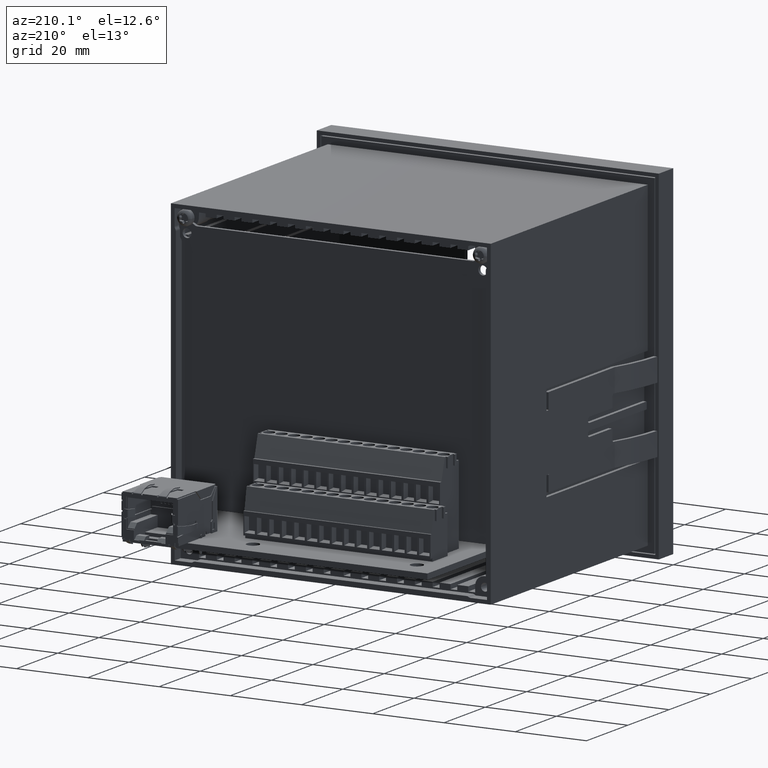
[diagram: clean part render]
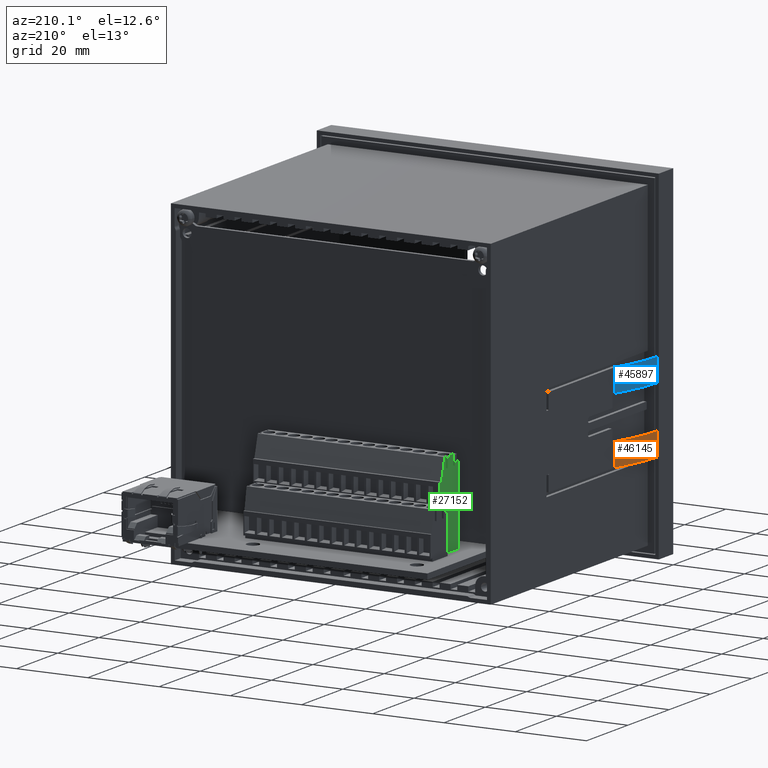
[diagram: same view with three faces highlighted in distinct colors, each labeled with its STEP entity id]
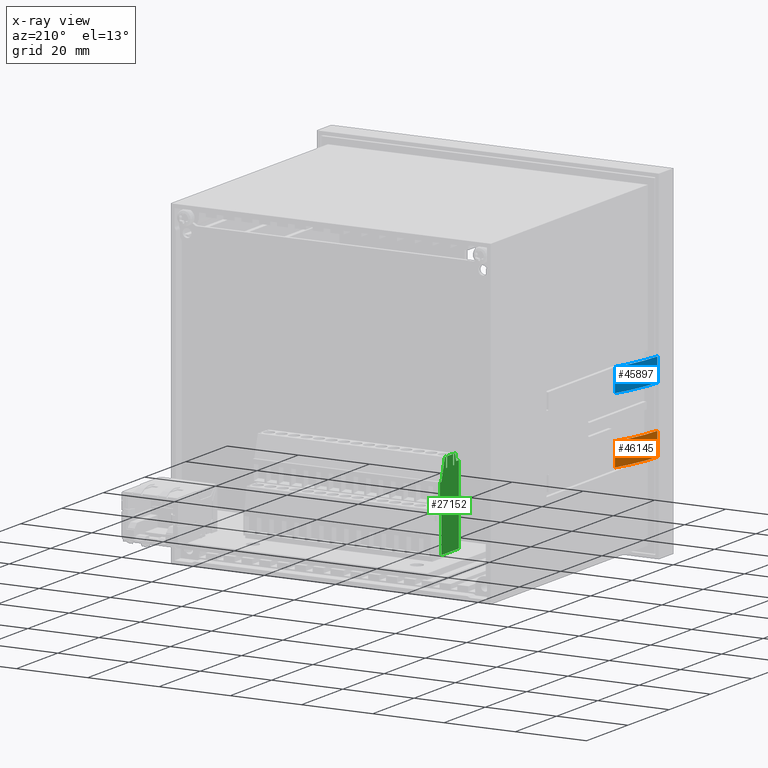
[diagram: x-ray of the same camera — body ghosted, the three highlighted faces saturated]
A machine part, auxiliary view with three faces highlighted in distinct colors.
The next image is the same camera in x-ray (body ghosted, the three faces saturated) — at least one of them is partly hidden behind the body in this view.
Their STEP definitions:

[orange] entity #46145 — the highlighted cylindrical surface (partial cylindrical patch) has radius 50 mm, axis along (0, -0, 1).
#45991=CARTESIAN_POINT('',(-76.974848406077427,-78.372143393853065,3.500000000000000));
#45992=VERTEX_POINT('',#45991);
#45993=CARTESIAN_POINT('',(-76.774848406077425,-78.572143393853068,3.493068063186549));
#45994=VERTEX_POINT('',#45993);
#45995=CARTESIAN_POINT('',(-76.974848406077427,-78.372143393853065,3.500000000000000));
#45996=CARTESIAN_POINT('',(-76.949736957239494,-78.372143393853065,3.500000000000000));
#45997=CARTESIAN_POINT('',(-76.922952630215235,-78.377161819387737,3.499836907714318));
#45998=CARTESIAN_POINT('',(-76.873682733819507,-78.397568216114649,3.499164289651506));
#45999=CARTESIAN_POINT('',(-76.851197148018201,-78.412956111997318,3.498653683013847));
#46000=CARTESIAN_POINT('',(-76.815677911659918,-78.448467004257481,3.497452370945204));
#46001=CARTESIAN_POINT('',(-76.800281573841701,-78.470961396272202,3.496681248520652));
#46002=CARTESIAN_POINT('',(-76.779866883074462,-78.520243670969450,3.494949979233098));
#46003=CARTESIAN_POINT('',(-76.774848406077425,-78.547031464332136,3.493988752707550));
#46004=CARTESIAN_POINT('',(-76.774848406077425,-78.572143393853068,3.493068063186549));
#46005=B_SPLINE_CURVE_WITH_KNOTS('',3,(#45995,#45996,#45997,#45998,#45999,#46000,#46001,#46002,#46003,#46004),.UNSPECIFIED.,.F.,.U.,(4,2,2,2,4),(1.205803795454174,1.281138141967968,1.356472488481763,1.431858893497012,1.507245298512260),.UNSPECIFIED.);
#46006=EDGE_CURVE('',#45992,#45994,#46005,.T.);
#46046=CARTESIAN_POINT('',(-76.774848406077425,-93.789754548061083,0.529966726762794));
#46047=VERTEX_POINT('',#46046);
#46048=CARTESIAN_POINT('',(-76.774848406077425,-76.740202633151583,-46.473360596957662));
#46049=DIRECTION('',(1.0,0.0,0.0));
#46050=DIRECTION('',(0.0,1.0,0.0));
#46051=AXIS2_PLACEMENT_3D('',#46048,#46049,#46050);
#46052=CIRCLE('',#46051,50.0);
#46053=EDGE_CURVE('',#45994,#46047,#46052,.T.);
#46098=CARTESIAN_POINT('',(-76.774848406077425,-76.740202633151583,-46.473360596957662));
#46099=DIRECTION('',(-1.0,0.0,0.0));
#46100=DIRECTION('',(0.0,1.0,0.0));
#46101=AXIS2_PLACEMENT_3D('',#46098,#46099,#46100);
#46102=CYLINDRICAL_SURFACE('',#46101,50.0);
#46103=ORIENTED_EDGE('',*,*,#46006,.F.);
#46104=CARTESIAN_POINT('',(-83.074848406077422,-78.372143393853065,3.500000000000000));
#46105=VERTEX_POINT('',#46104);
#46106=CARTESIAN_POINT('',(-76.974848406077427,-78.372143393853065,3.500000000000000));
#46107=DIRECTION('',(-1.0,0.0,0.0));
#46108=VECTOR('',#46107,6.099999999999994);
#46109=LINE('',#46106,#46108);
#46110=EDGE_CURVE('',#45992,#46105,#46109,.T.);
#46111=ORIENTED_EDGE('',*,*,#46110,.T.);
#46112=CARTESIAN_POINT('',(-83.274848406077425,-78.572143393853054,3.493068063186549));
#46113=VERTEX_POINT('',#46112);
#46114=CARTESIAN_POINT('',(-83.274848406077425,-78.572143393853054,3.493068063186549));
#46115=CARTESIAN_POINT('',(-83.274848406077425,-78.547031464332122,3.493988752707550));
#46116=CARTESIAN_POINT('',(-83.269829929080416,-78.520243670969464,3.494949979233098));
#46117=CARTESIAN_POINT('',(-83.249415238313176,-78.470961396272216,3.496681248520652));
#46118=CARTESIAN_POINT('',(-83.234018900494945,-78.448467004257481,3.497452370945204));
#46119=CARTESIAN_POINT('',(-83.198499664136676,-78.412956111997318,3.498653683013847));
#46120=CARTESIAN_POINT('',(-83.176014078335342,-78.397568216114649,3.499164289651506));
#46121=CARTESIAN_POINT('',(-83.126744181939600,-78.377161819387723,3.499836907714318));
#46122=CARTESIAN_POINT('',(-83.099959854915355,-78.372143393853051,3.500000000000007));
#46123=CARTESIAN_POINT('',(-83.074848406077422,-78.372143393853051,3.500000000000007));
#46124=B_SPLINE_CURVE_WITH_KNOTS('',3,(#46114,#46115,#46116,#46117,#46118,#46119,#46120,#46121,#46122,#46123),.UNSPECIFIED.,.F.,.U.,(4,2,2,2,4),(0.904362292396086,0.979748697411325,1.055135102426564,1.130469448940368,1.205803795454173),.UNSPECIFIED.);
#46125=EDGE_CURVE('',#46113,#46105,#46124,.T.);
#46126=ORIENTED_EDGE('',*,*,#46125,.F.);
#46127=CARTESIAN_POINT('',(-83.274848406077425,-93.789754548061083,0.529966726762794));
#46128=VERTEX_POINT('',#46127);
#46129=CARTESIAN_POINT('',(-83.274848406077425,-76.740202633151583,-46.473360596957662));
#46130=DIRECTION('',(1.0,0.0,0.0));
#46131=DIRECTION('',(0.0,1.0,0.0));
#46132=AXIS2_PLACEMENT_3D('',#46129,#46130,#46131);
#46133=CIRCLE('',#46132,50.0);
#46134=EDGE_CURVE('',#46113,#46128,#46133,.T.);
#46135=ORIENTED_EDGE('',*,*,#46134,.T.);
#46136=CARTESIAN_POINT('',(-76.774848406077425,-93.789754548061083,0.529966726762794));
#46137=DIRECTION('',(-1.0,0.0,0.0));
#46138=VECTOR('',#46137,6.500000000000000);
#46139=LINE('',#46136,#46138);
#46140=EDGE_CURVE('',#46047,#46128,#46139,.T.);
#46141=ORIENTED_EDGE('',*,*,#46140,.F.);
#46142=ORIENTED_EDGE('',*,*,#46053,.F.);
#46143=EDGE_LOOP('',(#46103,#46111,#46126,#46135,#46141,#46142));
#46144=FACE_OUTER_BOUND('',#46143,.T.);
#46145=ADVANCED_FACE('',(#46144),#46102,.T.);

[blue] entity #45897 — the highlighted cylindrical surface (partial cylindrical patch) has radius 50 mm, axis along (0, -0, 1).
#45760=CARTESIAN_POINT('',(-95.474848406077427,-78.372143393853065,3.500000000000000));
#45761=VERTEX_POINT('',#45760);
#45768=CARTESIAN_POINT('',(-95.274848406077425,-78.572143393853054,3.493068063186549));
#45769=VERTEX_POINT('',#45768);
#45770=CARTESIAN_POINT('',(-95.474848406077427,-78.372143393853065,3.500000000000000));
#45771=CARTESIAN_POINT('',(-95.449736957239494,-78.372143393853065,3.500000000000000));
#45772=CARTESIAN_POINT('',(-95.422952630215249,-78.377161819387723,3.499836907714318));
#45773=CARTESIAN_POINT('',(-95.373682733819507,-78.397568216114649,3.499164289651506));
#45774=CARTESIAN_POINT('',(-95.351197148018173,-78.412956111997318,3.498653683013847));
#45775=CARTESIAN_POINT('',(-95.315677911659918,-78.448467004257495,3.497452370945204));
#45776=CARTESIAN_POINT('',(-95.300281573841673,-78.470961396272244,3.496681248520652));
#45777=CARTESIAN_POINT('',(-95.279866883074433,-78.520243670969464,3.494949979233099));
#45778=CARTESIAN_POINT('',(-95.274848406077425,-78.547031464332136,3.493988752707550));
#45779=CARTESIAN_POINT('',(-95.274848406077425,-78.572143393853054,3.493068063186549));
#45780=B_SPLINE_CURVE_WITH_KNOTS('',3,(#45770,#45771,#45772,#45773,#45774,#45775,#45776,#45777,#45778,#45779),.UNSPECIFIED.,.F.,.U.,(4,2,2,2,4),(0.602901897727087,0.678236244240891,0.753570590754696,0.828956995769935,0.904343400785174),.UNSPECIFIED.);
#45781=EDGE_CURVE('',#45761,#45769,#45780,.T.);
#45798=CARTESIAN_POINT('',(-95.274848406077425,-93.789754548061083,0.529966726762794));
#45799=VERTEX_POINT('',#45798);
#45800=CARTESIAN_POINT('',(-95.274848406077425,-76.740202633151583,-46.473360596957662));
#45801=DIRECTION('',(-1.0,0.0,0.0));
#45802=DIRECTION('',(0.0,1.0,0.0));
#45803=AXIS2_PLACEMENT_3D('',#45800,#45801,#45802);
#45804=CIRCLE('',#45803,50.0);
#45805=EDGE_CURVE('',#45799,#45769,#45804,.T.);
#45850=CARTESIAN_POINT('',(-76.774848406077425,-76.740202633151583,-46.473360596957662));
#45851=DIRECTION('',(-1.0,0.0,0.0));
#45852=DIRECTION('',(0.0,1.0,0.0));
#45853=AXIS2_PLACEMENT_3D('',#45850,#45851,#45852);
#45854=CYLINDRICAL_SURFACE('',#45853,50.0);
#45855=ORIENTED_EDGE('',*,*,#45781,.F.);
#45856=CARTESIAN_POINT('',(-101.574848406077420,-78.372143393853065,3.500000000000000));
#45857=VERTEX_POINT('',#45856);
#45858=CARTESIAN_POINT('',(-95.474848406077427,-78.372143393853065,3.500000000000000));
#45859=DIRECTION('',(-1.0,0.0,0.0));
#45860=VECTOR('',#45859,6.099999999999994);
#45861=LINE('',#45858,#45860);
#45862=EDGE_CURVE('',#45761,#45857,#45861,.T.);
#45863=ORIENTED_EDGE('',*,*,#45862,.T.);
#45864=CARTESIAN_POINT('',(-101.774848406077420,-78.572143393853054,3.493068063186549));
#45865=VERTEX_POINT('',#45864);
#45866=CARTESIAN_POINT('',(-101.774848406077420,-78.572143393853054,3.493068063186549));
#45867=CARTESIAN_POINT('',(-101.774848406077420,-78.547031464332122,3.493988752707550));
#45868=CARTESIAN_POINT('',(-101.769829929080420,-78.520243670969464,3.494949979233098));
#45869=CARTESIAN_POINT('',(-101.749415238313180,-78.470961396272216,3.496681248520652));
#45870=CARTESIAN_POINT('',(-101.734018900494950,-78.448467004257481,3.497452370945204));
#45871=CARTESIAN_POINT('',(-101.698499664136680,-78.412956111997318,3.498653683013847));
#45872=CARTESIAN_POINT('',(-101.676014078335340,-78.397568216114649,3.499164289651506));
#45873=CARTESIAN_POINT('',(-101.626744181939600,-78.377161819387723,3.499836907714318));
#45874=CARTESIAN_POINT('',(-101.599959854915350,-78.372143393853051,3.500000000000007));
#45875=CARTESIAN_POINT('',(-101.574848406077420,-78.372143393853051,3.500000000000007));
#45876=B_SPLINE_CURVE_WITH_KNOTS('',3,(#45866,#45867,#45868,#45869,#45870,#45871,#45872,#45873,#45874,#45875),.UNSPECIFIED.,.F.,.U.,(4,2,2,2,4),(0.904362292396086,0.979748697411325,1.055135102426564,1.130469448940368,1.205803795454173),.UNSPECIFIED.);
#45877=EDGE_CURVE('',#45865,#45857,#45876,.T.);
#45878=ORIENTED_EDGE('',*,*,#45877,.F.);
#45879=CARTESIAN_POINT('',(-101.774848406077420,-93.789754548061083,0.529966726762794));
#45880=VERTEX_POINT('',#45879);
#45881=CARTESIAN_POINT('',(-101.774848406077420,-76.740202633151583,-46.473360596957662));
#45882=DIRECTION('',(1.0,0.0,0.0));
#45883=DIRECTION('',(0.0,1.0,0.0));
#45884=AXIS2_PLACEMENT_3D('',#45881,#45882,#45883);
#45885=CIRCLE('',#45884,50.0);
#45886=EDGE_CURVE('',#45865,#45880,#45885,.T.);
#45887=ORIENTED_EDGE('',*,*,#45886,.T.);
#45888=CARTESIAN_POINT('',(-95.274848406077425,-93.789754548061083,0.529966726762794));
#45889=DIRECTION('',(-1.0,0.0,0.0));
#45890=VECTOR('',#45889,6.500000000000000);
#45891=LINE('',#45888,#45890);
#45892=EDGE_CURVE('',#45799,#45880,#45891,.T.);
#45893=ORIENTED_EDGE('',*,*,#45892,.F.);
#45894=ORIENTED_EDGE('',*,*,#45805,.T.);
#45895=EDGE_LOOP('',(#45855,#45863,#45878,#45887,#45893,#45894));
#45896=FACE_OUTER_BOUND('',#45895,.T.);
#45897=ADVANCED_FACE('',(#45896),#45854,.T.);

[green] entity #27152 — the highlighted planar face has unit normal (-1, -0, 0).
#16975=CARTESIAN_POINT('',(28.0,24.100000000000001,6.799996569340950));
#16976=VERTEX_POINT('',#16975);
#16983=CARTESIAN_POINT('',(28.0,24.100000000000001,1.799998602720520));
#16984=VERTEX_POINT('',#16983);
#16985=CARTESIAN_POINT('',(28.0,24.100000000000001,6.799996569340950));
#16986=DIRECTION('',(0.0,0.0,-1.0));
#16987=VECTOR('',#16986,4.999997966620430);
#16988=LINE('',#16985,#16987);
#16989=EDGE_CURVE('',#16976,#16984,#16988,.T.);
#17976=CARTESIAN_POINT('',(28.0,24.099000000000000,6.200000000000000));
#17977=VERTEX_POINT('',#17976);
#17978=CARTESIAN_POINT('',(28.0,24.099000000000000,5.700000000000000));
#17979=VERTEX_POINT('',#17978);
#17980=CARTESIAN_POINT('',(28.0,24.099000000000000,6.200000000000000));
#17981=DIRECTION('',(0.0,0.0,-1.0));
#17982=VECTOR('',#17981,0.500000000000000);
#17983=LINE('',#17980,#17982);
#17984=EDGE_CURVE('',#17977,#17979,#17983,.T.);
#18048=CARTESIAN_POINT('',(28.0,21.250000000000000,6.200000000000000));
#18049=VERTEX_POINT('',#18048);
#18050=CARTESIAN_POINT('',(28.0,21.250000000000000,6.200000000000000));
#18051=DIRECTION('',(0.0,1.0,0.0));
#18052=VECTOR('',#18051,2.849000000000000);
#18053=LINE('',#18050,#18052);
#18054=EDGE_CURVE('',#18049,#17977,#18053,.T.);
#18079=CARTESIAN_POINT('',(28.0,21.250000000000000,5.700000000000000));
#18080=VERTEX_POINT('',#18079);
#18081=CARTESIAN_POINT('',(28.0,24.099000000000000,5.700000000000000));
#18082=DIRECTION('',(0.0,-1.0,0.0));
#18083=VECTOR('',#18082,2.849000000000000);
#18084=LINE('',#18081,#18083);
#18085=EDGE_CURVE('',#17979,#18080,#18084,.T.);
#18223=CARTESIAN_POINT('',(28.0,21.250000000000000,5.700000000000000));
#18224=DIRECTION('',(0.0,0.0,1.0));
#18225=VECTOR('',#18224,0.500000000000000);
#18226=LINE('',#18223,#18225);
#18227=EDGE_CURVE('',#18080,#18049,#18226,.T.);
#18244=CARTESIAN_POINT('',(28.0,24.099000000000000,2.800000000000000));
#18245=VERTEX_POINT('',#18244);
#18246=CARTESIAN_POINT('',(28.0,24.099000000000000,2.300000000000000));
#18247=VERTEX_POINT('',#18246);
#18248=CARTESIAN_POINT('',(28.0,24.099000000000000,2.800000000000000));
#18249=DIRECTION('',(0.0,0.0,-1.0));
#18250=VECTOR('',#18249,0.500000000000000);
#18251=LINE('',#18248,#18250);
#18252=EDGE_CURVE('',#18245,#18247,#18251,.T.);
#18316=CARTESIAN_POINT('',(28.0,21.250000000000000,2.800000000000000));
#18317=VERTEX_POINT('',#18316);
#18318=CARTESIAN_POINT('',(28.0,21.250000000000000,2.800000000000000));
#18319=DIRECTION('',(0.0,1.0,0.0));
#18320=VECTOR('',#18319,2.849000000000000);
#18321=LINE('',#18318,#18320);
#18322=EDGE_CURVE('',#18317,#18245,#18321,.T.);
#18347=CARTESIAN_POINT('',(28.0,21.250000000000000,2.300000000000000));
#18348=VERTEX_POINT('',#18347);
#18349=CARTESIAN_POINT('',(28.0,24.099000000000000,2.300000000000000));
#18350=DIRECTION('',(0.0,-1.0,0.0));
#18351=VECTOR('',#18350,2.849000000000000);
#18352=LINE('',#18349,#18351);
#18353=EDGE_CURVE('',#18247,#18348,#18352,.T.);
#18491=CARTESIAN_POINT('',(28.0,21.250000000000000,2.300000000000000));
#18492=DIRECTION('',(0.0,0.0,1.0));
#18493=VECTOR('',#18492,0.500000000000000);
#18494=LINE('',#18491,#18493);
#18495=EDGE_CURVE('',#18348,#18317,#18494,.T.);
#25825=CARTESIAN_POINT('',(28.0,10.750000000000000,8.449999999999999));
#25826=VERTEX_POINT('',#25825);
#25849=CARTESIAN_POINT('',(28.0,0.0,8.449999999999999));
#25850=VERTEX_POINT('',#25849);
#25851=CARTESIAN_POINT('',(28.0,0.0,8.449999999999999));
#25852=DIRECTION('',(0.0,1.0,0.0));
#25853=VECTOR('',#25852,10.750000000000000);
#25854=LINE('',#25851,#25853);
#25855=EDGE_CURVE('',#25850,#25826,#25854,.T.);
#26770=CARTESIAN_POINT('',(28.0,12.150000054167799,9.150000000000000));
#26771=VERTEX_POINT('',#26770);
#26772=CARTESIAN_POINT('',(28.0,18.250000000000000,9.150000000000000));
#26773=VERTEX_POINT('',#26772);
#26774=CARTESIAN_POINT('',(28.0,12.150000054167799,9.150000000000000));
#26775=DIRECTION('',(0.0,1.0,0.0));
#26776=VECTOR('',#26775,6.099999945832201);
#26777=LINE('',#26774,#26776);
#26778=EDGE_CURVE('',#26771,#26773,#26777,.T.);
#26849=CARTESIAN_POINT('',(28.0,18.250000000000000,8.438542000000000));
#26850=VERTEX_POINT('',#26849);
#26851=CARTESIAN_POINT('',(28.0,18.250000000000000,9.150000000000000));
#26852=DIRECTION('',(0.0,0.0,-1.0));
#26853=VECTOR('',#26852,0.711458000000000);
#26854=LINE('',#26851,#26853);
#26855=EDGE_CURVE('',#26773,#26850,#26854,.T.);
#26873=CARTESIAN_POINT('',(28.0,18.250000000000000,8.438542000000000));
#26874=DIRECTION('',(0.0,0.962940705089896,-0.269713178174471));
#26875=VECTOR('',#26874,6.075140420462203);
#26876=LINE('',#26873,#26875);
#26877=EDGE_CURVE('',#26850,#16976,#26876,.T.);
#26890=CARTESIAN_POINT('',(28.0,22.050000000000001,1.325000000000000));
#26891=VERTEX_POINT('',#26890);
#26892=CARTESIAN_POINT('',(28.0,24.100000000000001,1.799998602720520));
#26893=DIRECTION('',(0.0,-0.974190724389764,-0.225726455057770));
#26894=VECTOR('',#26893,2.104310735748514);
#26895=LINE('',#26892,#26894);
#26896=EDGE_CURVE('',#16984,#26891,#26895,.T.);
#26914=CARTESIAN_POINT('',(28.0,22.050000000000001,0.0));
#26915=VERTEX_POINT('',#26914);
#26916=CARTESIAN_POINT('',(28.0,22.050000000000001,1.325000000000000));
#26917=DIRECTION('',(0.0,0.0,-1.0));
#26918=VECTOR('',#26917,1.325000000000000);
#26919=LINE('',#26916,#26918);
#26920=EDGE_CURVE('',#26891,#26915,#26919,.T.);
#26938=CARTESIAN_POINT('',(28.0,0.0,0.0));
#26939=VERTEX_POINT('',#26938);
#26940=CARTESIAN_POINT('',(28.0,22.050000000000001,0.0));
#26941=DIRECTION('',(0.0,-1.0,0.0));
#26942=VECTOR('',#26941,22.050000000000001);
#26943=LINE('',#26940,#26942);
#26944=EDGE_CURVE('',#26915,#26939,#26943,.T.);
#26962=CARTESIAN_POINT('',(28.0,0.0,0.0));
#26963=DIRECTION('',(0.0,0.0,1.0));
#26964=VECTOR('',#26963,8.449999999999999);
#26965=LINE('',#26962,#26964);
#26966=EDGE_CURVE('',#26939,#25850,#26965,.T.);
#27085=CARTESIAN_POINT('',(28.0,11.949999999999999,8.449999999999999));
#27086=VERTEX_POINT('',#27085);
#27087=CARTESIAN_POINT('',(28.0,10.750000000000000,8.449999999999999));
#27088=DIRECTION('',(0.0,1.0,0.0));
#27089=VECTOR('',#27088,1.199999999999999);
#27090=LINE('',#27087,#27089);
#27091=EDGE_CURVE('',#25826,#27086,#27090,.T.);
#27110=CARTESIAN_POINT('',(28.0,11.949999999999999,8.449999999999999));
#27111=DIRECTION('',(0.0,0.274721196687085,0.961523927986619));
#27112=VECTOR('',#27111,0.728011003809094);
#27113=LINE('',#27110,#27112);
#27114=EDGE_CURVE('',#27086,#26771,#27113,.T.);
#27122=CARTESIAN_POINT('',(28.0,-1.205000000000000,9.607500000000000));
#27123=DIRECTION('',(1.0,0.0,0.0));
#27124=DIRECTION('',(0.0,0.0,-1.0));
#27125=AXIS2_PLACEMENT_3D('',#27122,#27123,#27124);
#27126=PLANE('',#27125);
#27127=ORIENTED_EDGE('',*,*,#26778,.F.);
#27128=ORIENTED_EDGE('',*,*,#27114,.F.);
#27129=ORIENTED_EDGE('',*,*,#27091,.F.);
#27130=ORIENTED_EDGE('',*,*,#25855,.F.);
#27131=ORIENTED_EDGE('',*,*,#26966,.F.);
#27132=ORIENTED_EDGE('',*,*,#26944,.F.);
#27133=ORIENTED_EDGE('',*,*,#26920,.F.);
#27134=ORIENTED_EDGE('',*,*,#26896,.F.);
#27135=ORIENTED_EDGE('',*,*,#16989,.F.);
#27136=ORIENTED_EDGE('',*,*,#26877,.F.);
#27137=ORIENTED_EDGE('',*,*,#26855,.F.);
#27138=EDGE_LOOP('',(#27127,#27128,#27129,#27130,#27131,#27132,#27133,#27134,#27135,#27136,#27137));
#27139=FACE_OUTER_BOUND('',#27138,.T.);
#27140=ORIENTED_EDGE('',*,*,#18322,.T.);
#27141=ORIENTED_EDGE('',*,*,#18252,.T.);
#27142=ORIENTED_EDGE('',*,*,#18353,.T.);
#27143=ORIENTED_EDGE('',*,*,#18495,.T.);
#27144=EDGE_LOOP('',(#27140,#27141,#27142,#27143));
#27145=FACE_BOUND('',#27144,.T.);
#27146=ORIENTED_EDGE('',*,*,#18054,.T.);
#27147=ORIENTED_EDGE('',*,*,#17984,.T.);
#27148=ORIENTED_EDGE('',*,*,#18085,.T.);
#27149=ORIENTED_EDGE('',*,*,#18227,.T.);
#27150=EDGE_LOOP('',(#27146,#27147,#27148,#27149));
#27151=FACE_BOUND('',#27150,.T.);
#27152=ADVANCED_FACE('',(#27139,#27145,#27151),#27126,.T.);